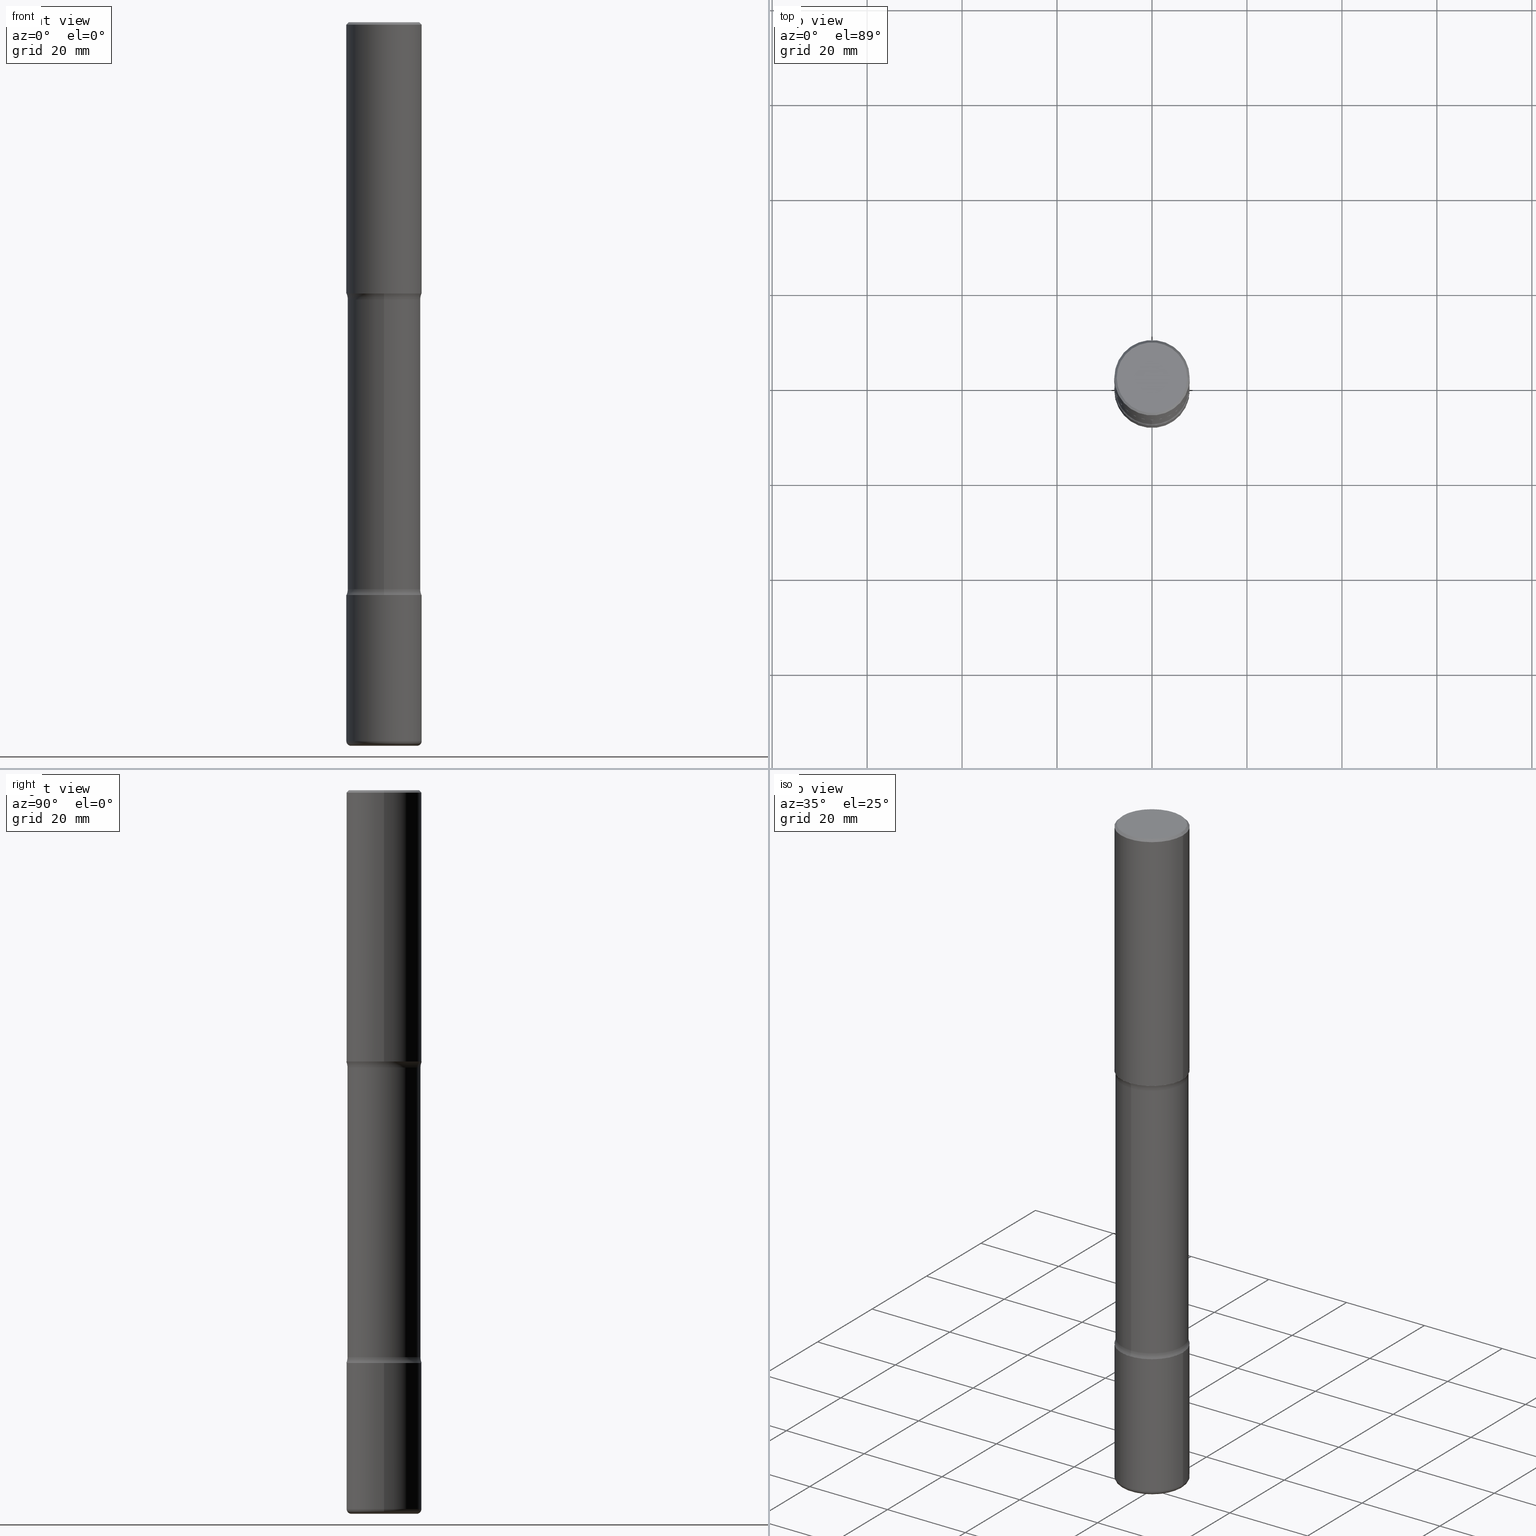
[diagram: canonical four-view strip — front | top / right | iso, engineering-drawing reading convention]
A machine part, canonical four-view strip (front | top / right | iso — engineering-drawing reading convention). The complete STEP part file that produces these views, byte-faithful:
ISO-10303-21;
HEADER;
FILE_DESCRIPTION (( 'STEP AP203' ),
    '1' );
FILE_NAME ('36469.STEP',
    '2024-03-01T23:57:30',
    ( '' ),
    ( '' ),
    'SwSTEP 2.0',
    'SolidWorks 2023',
    '' );
FILE_SCHEMA (( 'CONFIG_CONTROL_DESIGN' ));
ENDSEC;

DATA;
#1 = DIRECTION ( 'NONE',  ( -2.445468806185136597E-29, 3.491481338843145583E-15, 1.000000000000000000 ) ) ;
#2 = VERTEX_POINT ( 'NONE', #43 ) ;
#3 = VERTEX_POINT ( 'NONE', #541 ) ;
#4 = AXIS2_PLACEMENT_3D ( 'NONE', #390, #205, #490 ) ;
#5 = CARTESIAN_POINT ( 'NONE',  ( 0.3124999999999998890, -2.299140461628210919E-14, -5.960000000000000853 ) ) ;
#6 = ORIENTED_EDGE ( 'NONE', *, *, #443, .T. ) ;
#7 = ADVANCED_FACE ( 'NONE', ( #323 ), #114, .F. ) ;
#8 = FACE_OUTER_BOUND ( 'NONE', #248, .T. ) ;
#9 = LINE ( 'NONE', #69, #157 ) ;
#10 = ORIENTED_EDGE ( 'NONE', *, *, #329, .F. ) ;
#11 = APPROVAL_ROLE ( '' ) ;
#12 = CARTESIAN_POINT ( 'NONE',  ( 0.000000000000000000, 0.000000000000000000, 0.000000000000000000 ) ) ;
#13 = DIRECTION ( 'NONE',  ( 1.000000000000000000, -6.982962677686262766E-15, 0.000000000000000000 ) ) ;
#14 = DATE_AND_TIME ( #397, #517 ) ;
#15 = ORIENTED_EDGE ( 'NONE', *, *, #362, .T. ) ;
#16 = AXIS2_PLACEMENT_3D ( 'NONE', #325, #117, #290 ) ;
#17 = EDGE_CURVE ( 'NONE', #295, #409, #499, .T. ) ;
#18 = CIRCLE ( 'NONE', #516, 0.3125000000000002220 ) ;
#19 = DIRECTION ( 'NONE',  ( 6.982962677686265133E-15, 1.000000000000000000, -3.612360983357704414E-15 ) ) ;
#20 = AXIS2_PLACEMENT_3D ( 'NONE', #475, #281, #274 ) ;
#21 = CARTESIAN_POINT ( 'NONE',  ( 2.182175836777014751E-15, 0.3124999999999923395, -2.250000000000000888 ) ) ;
#22 = DESIGN_CONTEXT ( 'detailed design', #262, 'design' ) ;
#23 = CARTESIAN_POINT ( 'NONE',  ( 5.431343903248796638E-29, -8.300064766295809891E-15, -2.298989794855664126 ) ) ;
#24 = DIRECTION ( 'NONE',  ( 2.445468806185136597E-29, -3.491481338843145583E-15, -1.000000000000000000 ) ) ;
#25 = ORIENTED_EDGE ( 'NONE', *, *, #513, .F. ) ;
#26 = DIRECTION ( 'NONE',  ( -2.445468806185136597E-29, 3.491481338843145583E-15, 1.000000000000000000 ) ) ;
#27 = CARTESIAN_POINT ( 'NONE',  ( 0.3125000000000002776, -1.003800884917403837E-14, -2.249999999999999556 ) ) ;
#28 = ORIENTED_EDGE ( 'NONE', *, *, #94, .F. ) ;
#29 = CLOSED_SHELL ( 'NONE', ( #368, #172, #549, #128, #414, #228 ) ) ;
#30 = CIRCLE ( 'NONE', #399, 0.3124999999999998335 ) ;
#31 = CYLINDRICAL_SURFACE ( 'NONE', #245, 0.3024999999999999911 ) ;
#32 = ORIENTED_EDGE ( 'NONE', *, *, #422, .T. ) ;
#33 = EDGE_CURVE ( 'NONE', #554, #142, #511, .T. ) ;
#34 = FACE_OUTER_BOUND ( 'NONE', #311, .T. ) ;
#35 = DIRECTION ( 'NONE',  ( 2.438088387897960049E-29, -3.491481338843145188E-15, -1.000000000000000000 ) ) ;
#36 = PERSON_AND_ORGANIZATION ( #350, #67 ) ;
#37 = CC_DESIGN_PERSON_AND_ORGANIZATION_ASSIGNMENT ( #103, #273, ( #292 ) ) ;
#38 = DIRECTION ( 'NONE',  ( 6.982962677686265922E-15, 1.000000000000000000, -3.612360983357703625E-15 ) ) ;
#39 = AXIS2_PLACEMENT_3D ( 'NONE', #229, #260, #184 ) ;
#40 = DIRECTION ( 'NONE',  ( 0.7071067811865461294, -7.319954787623251312E-15, -0.7071067811865489050 ) ) ;
#41 = ORIENTED_EDGE ( 'NONE', *, *, #530, .T. ) ;
#42 = CARTESIAN_POINT ( 'NONE',  ( -2.143905624303553126E-15, -0.3125000000000086042, -2.249999999999998668 ) ) ;
#43 = CARTESIAN_POINT ( 'NONE',  ( -2.143905624303488045E-15, -0.3125000000000167644, -4.749999999999998224 ) ) ;
#44 = DIRECTION ( 'NONE',  ( 7.105427357601001859E-15, 1.000000000000000000, -3.491481338843145583E-15 ) ) ;
#45 = ORIENTED_EDGE ( 'NONE', *, *, #462, .F. ) ;
#46 = TOROIDAL_SURFACE ( 'NONE', #126, 0.2725000000000002420, 0.03999999999999923062 ) ;
#47 = AXIS2_PLACEMENT_3D ( 'NONE', #154, #351, #19 ) ;
#48 = DIRECTION ( 'NONE',  ( -2.445468806185136877E-29, 3.491481338843145188E-15, 1.000000000000000000 ) ) ;
#49 = VERTEX_POINT ( 'NONE', #282 ) ;
#50 = DIRECTION ( 'NONE',  ( 2.521774376508614919E-29, -3.382207419096575054E-15, -1.000000000000000000 ) ) ;
#51 = ORIENTED_EDGE ( 'NONE', *, *, #285, .T. ) ;
#52 = LINE ( 'NONE', #136, #491 ) ;
#53 = CC_DESIGN_PERSON_AND_ORGANIZATION_ASSIGNMENT ( #444, #533, ( #227 ) ) ;
#54 = EDGE_LOOP ( 'NONE', ( #429, #276 ) ) ;
#55 = AXIS2_PLACEMENT_3D ( 'NONE', #119, #291, #38 ) ;
#56 = CC_DESIGN_APPROVAL ( #133, ( #449 ) ) ;
#57 = DIRECTION ( 'NONE',  ( 1.000000000000000000, -6.982962677686269077E-15, 0.000000000000000000 ) ) ;
#58 = VERTEX_POINT ( 'NONE', #27 ) ;
#59 = APPROVAL_STATUS ( 'not_yet_approved' ) ;
#60 = CARTESIAN_POINT ( 'NONE',  ( -0.3124999999999998335, 2.112346210000093471E-15, -0.02000000000000013572 ) ) ;
#61 = APPLICATION_PROTOCOL_DEFINITION ( 'international standard', 'config_control_design', 1994, #74 ) ;
#62 = ORIENTED_EDGE ( 'NONE', *, *, #223, .T. ) ;
#63 = EDGE_CURVE ( 'NONE', #58, #393, #9, .T. ) ;
#64 = CARTESIAN_POINT ( 'NONE',  ( 1.467281283711081734E-28, -2.094888803305886955E-14, -5.999999999999999112 ) ) ;
#65 = DIRECTION ( 'NONE',  ( 2.445468806185136597E-29, -3.491481338843145583E-15, -1.000000000000000000 ) ) ;
#66 = CIRCLE ( 'NONE', #379, 0.1250000000000000278 ) ;
#67 = ORGANIZATION ( 'UNSPECIFIED', 'UNSPECIFIED', '' ) ;
#68 = FACE_OUTER_BOUND ( 'NONE', #170, .T. ) ;
#69 = CARTESIAN_POINT ( 'NONE',  ( 0.3125000000000000000, -2.182175836776958347E-15, 1.523805242436230075E-29 ) ) ;
#70 = SHAPE_DEFINITION_REPRESENTATION ( #478, #146 ) ;
#71 = DIRECTION ( 'NONE',  ( -6.982962677686266711E-15, -1.000000000000000000, 0.000000000000000000 ) ) ;
#72 = ADVANCED_FACE ( 'NONE', ( #346 ), #536, .T. ) ;
#73 = CALENDAR_DATE ( 2024, 1, 3 ) ;
#74 = APPLICATION_CONTEXT ( 'configuration controlled 3d designs of mechanical parts and assemblies' ) ;
#75 = VECTOR ( 'NONE', #40, 39.37007874015748143 ) ;
#76 = LINE ( 'NONE', #331, #174 ) ;
#77 = AXIS2_PLACEMENT_3D ( 'NONE', #134, #470, #92 ) ;
#78 = DIRECTION ( 'NONE',  ( 2.521774376508615199E-29, -3.382207419096575054E-15, -1.000000000000000000 ) ) ;
#79 = APPROVAL_STATUS ( 'not_yet_approved' ) ;
#80 = ADVANCED_FACE ( 'NONE', ( #454 ), #339, .T. ) ;
#81 = DIRECTION ( 'NONE',  ( 2.521774376508615199E-29, -3.382207419096575054E-15, -1.000000000000000000 ) ) ;
#82 = PLANE ( 'NONE',  #410 ) ;
#83 = CIRCLE ( 'NONE', #4, 0.3125000000000002220 ) ;
#84 = CIRCLE ( 'NONE', #20, 0.3125000000000002220 ) ;
#85 = CARTESIAN_POINT ( 'NONE',  ( 1.161597682937939659E-28, -1.658453635950493708E-14, -4.749999999999999112 ) ) ;
#86 = EDGE_LOOP ( 'NONE', ( #258, #185 ) ) ;
#87 = CARTESIAN_POINT ( 'NONE',  ( -0.2924999999999997602, 2.077431396611662611E-15, -1.440630921208799100E-29 ) ) ;
#88 = ADVANCED_FACE ( 'NONE', ( #241 ), #555, .T. ) ;
#89 = ORIENTED_EDGE ( 'NONE', *, *, #349, .T. ) ;
#90 = DIRECTION ( 'NONE',  ( 2.521774376508615199E-29, -3.382207419096575054E-15, -1.000000000000000000 ) ) ;
#91 = TOROIDAL_SURFACE ( 'NONE', #447, 0.4275000000000001021, 0.1250000000000000278 ) ;
#92 = DIRECTION ( 'NONE',  ( 6.860497997771531562E-15, 1.000000000000000000, 0.000000000000000000 ) ) ;
#93 = EDGE_LOOP ( 'NONE', ( #28, #243, #471, #266 ) ) ;
#94 = EDGE_CURVE ( 'NONE', #2, #474, #83, .T. ) ;
#95 = ORIENTED_EDGE ( 'NONE', *, *, #384, .T. ) ;
#96 = CARTESIAN_POINT ( 'NONE',  ( 5.502304813916556222E-29, -7.855833012397076871E-15, -2.249999999999999556 ) ) ;
#97 = VERTEX_POINT ( 'NONE', #21 ) ;
#98 = AXIS2_PLACEMENT_3D ( 'NONE', #446, #483, #159 ) ;
#99 =( GEOMETRIC_REPRESENTATION_CONTEXT ( 3 ) GLOBAL_UNCERTAINTY_ASSIGNED_CONTEXT ( ( #529 ) ) GLOBAL_UNIT_ASSIGNED_CONTEXT ( ( #453, #238, #531 ) ) REPRESENTATION_CONTEXT ( 'NONE', 'WORKASPACE' ) );
#100 = CARTESIAN_POINT ( 'NONE',  ( 5.502304813916556222E-29, -7.855833012397076871E-15, -2.249999999999999556 ) ) ;
#101 = DIRECTION ( 'NONE',  ( 1.000000000000000000, -6.982962677686270655E-15, 0.000000000000000000 ) ) ;
#102 = EDGE_CURVE ( 'NONE', #409, #382, #361, .T. ) ;
#103 = PERSON_AND_ORGANIZATION ( #350, #67 ) ;
#104 = ORIENTED_EDGE ( 'NONE', *, *, #495, .F. ) ;
#105 = DIRECTION ( 'NONE',  ( 1.000000000000000000, -6.982962677686262766E-15, 4.883557194083111780E-29 ) ) ;
#106 = ORIENTED_EDGE ( 'NONE', *, *, #179, .T. ) ;
#107 = COORDINATED_UNIVERSAL_TIME_OFFSET ( 5, 0, .BEHIND. ) ;
#108 = AXIS2_PLACEMENT_3D ( 'NONE', #249, #284, #543 ) ;
#109 = LINE ( 'NONE', #60, #165 ) ;
#110 = LOCAL_TIME ( 18, 57, 30.00000000000000000, #107 ) ;
#111 = EDGE_CURVE ( 'NONE', #218, #295, #261, .T. ) ;
#112 = CARTESIAN_POINT ( 'NONE',  ( 4.890937612370306439E-31, -6.982962677686338448E-17, -0.02000000000000013572 ) ) ;
#113 = DIRECTION ( 'NONE',  ( -2.445468806185136597E-29, 3.491481338843145583E-15, 1.000000000000000000 ) ) ;
#114 = PLANE ( 'NONE',  #197 ) ;
#115 = AXIS2_PLACEMENT_3D ( 'NONE', #296, #113, #496 ) ;
#116 = CARTESIAN_POINT ( 'NONE',  ( 1.149243562000197056E-28, -1.641884271188409594E-14, -4.701010205144335430 ) ) ;
#117 = DIRECTION ( 'NONE',  ( -6.982962677686266711E-15, -1.000000000000000000, 3.491481338843145583E-15 ) ) ;
#118 = ADVANCED_FACE ( 'NONE', ( #442 ), #461, .F. ) ;
#119 = CARTESIAN_POINT ( 'NONE',  ( 1.476819480001516468E-28, -2.081229563337565590E-14, -5.999999999999999112 ) ) ;
#120 = DIRECTION ( 'NONE',  ( -1.000000000000000000, 6.982962677686265922E-15, -4.876176775795935793E-29 ) ) ;
#121 = CARTESIAN_POINT ( 'NONE',  ( 1.741520017396376925E-28, -8.279718458765584785E-15, -4.749999999999999112 ) ) ;
#122 = DATE_AND_TIME ( #73, #411 ) ;
#123 = EDGE_LOOP ( 'NONE', ( #182, #341, #407, #389 ) ) ;
#124 = ORIENTED_EDGE ( 'NONE', *, *, #102, .T. ) ;
#125 = CARTESIAN_POINT ( 'NONE',  ( 5.431343903248796638E-29, -8.300064766295809891E-15, -2.298989794855664126 ) ) ;
#126 = AXIS2_PLACEMENT_3D ( 'NONE', #148, #485, #105 ) ;
#127 = VERTEX_POINT ( 'NONE', #355 ) ;
#128 = ADVANCED_FACE ( 'NONE', ( #452 ), #46, .T. ) ;
#129 = DIRECTION ( 'NONE',  ( -2.445468806185136597E-29, 3.491481338843145583E-15, 1.000000000000000000 ) ) ;
#130 = EDGE_LOOP ( 'NONE', ( #472, #153 ) ) ;
#131 = PRODUCT ( '36469', '36469', '', ( #487 ) ) ;
#132 = CARTESIAN_POINT ( 'NONE',  ( 0.3124999999999998335, -2.213735251080466123E-15, -0.02000000000000013572 ) ) ;
#133 = APPROVAL ( #79, 'UNSPECIFIED' ) ;
#134 = CARTESIAN_POINT ( 'NONE',  ( -2.932862894047215342E-15, -0.4275000000000165334, -4.701010205144333653 ) ) ;
#135 = APPROVAL ( #404, 'UNSPECIFIED' ) ;
#136 = CARTESIAN_POINT ( 'NONE',  ( 0.3125000000000002220, -2.182175836776959925E-15, 1.523805242436231196E-29 ) ) ;
#137 = EDGE_LOOP ( 'NONE', ( #204, #328, #476, #525 ) ) ;
#138 = DIRECTION ( 'NONE',  ( 2.521774376508615199E-29, -3.382207419096575054E-15, -1.000000000000000000 ) ) ;
#139 = CARTESIAN_POINT ( 'NONE',  ( 0.2924999999999997602, -2.110215457714318748E-15, 1.452077414963940822E-29 ) ) ;
#140 = ORIENTED_EDGE ( 'NONE', *, *, #443, .F. ) ;
#141 = CARTESIAN_POINT ( 'NONE',  ( 1.467281283711081734E-28, -2.094888803305886955E-14, -5.999999999999999112 ) ) ;
#142 = VERTEX_POINT ( 'NONE', #210 ) ;
#143 = ORIENTED_EDGE ( 'NONE', *, *, #267, .F. ) ;
#144 = AXIS2_PLACEMENT_3D ( 'NONE', #521, #1, #225 ) ;
#145 = LOCAL_TIME ( 18, 57, 30.00000000000000000, #166 ) ;
#146 = ADVANCED_BREP_SHAPE_REPRESENTATION ( '36469', ( #192, #367, #374, #547 ), #99 ) ;
#147 = DIRECTION ( 'NONE',  ( 2.521774376508615199E-29, -3.382207419096575054E-15, -1.000000000000000000 ) ) ;
#148 = CARTESIAN_POINT ( 'NONE',  ( 1.457499408486341564E-28, -2.080922877950515242E-14, -5.960000000000000853 ) ) ;
#149 = PERSON_AND_ORGANIZATION_ROLE ( 'design_supplier' ) ;
#150 = EDGE_LOOP ( 'NONE', ( #492, #32, #421, #25 ) ) ;
#151 = DIRECTION ( 'NONE',  ( -2.445468806185136597E-29, 3.491481338843145583E-15, 1.000000000000000000 ) ) ;
#152 = LENGTH_MEASURE_WITH_UNIT ( LENGTH_MEASURE( 0.02539999999999999897 ), #356 );
#153 = ORIENTED_EDGE ( 'NONE', *, *, #505, .F. ) ;
#154 = CARTESIAN_POINT ( 'NONE',  ( 1.149243562000197056E-28, -1.641884271188409594E-14, -4.701010205144335430 ) ) ;
#155 = APPROVAL_DATE_TIME ( #14, #156 ) ;
#156 = APPROVAL ( #59, 'UNSPECIFIED' ) ;
#157 = VECTOR ( 'NONE', #283, 39.37007874015748143 ) ;
#158 = CC_DESIGN_APPROVAL ( #156, ( #227 ) ) ;
#159 = DIRECTION ( 'NONE',  ( 1.000000000000000000, -6.982962677686266711E-15, 4.876176775795936353E-29 ) ) ;
#160 = CARTESIAN_POINT ( 'NONE',  ( -2.932862894047275690E-15, -0.4275000000000084288, -2.298989794855662794 ) ) ;
#161 = ORIENTED_EDGE ( 'NONE', *, *, #422, .F. ) ;
#162 = FACE_OUTER_BOUND ( 'NONE', #150, .T. ) ;
#163 = CIRCLE ( 'NONE', #183, 0.3125000000000002220 ) ;
#164 = CARTESIAN_POINT ( 'NONE',  ( 0.2725000000000001865, -2.285174536272837944E-14, -5.999999999999999112 ) ) ;
#165 = VECTOR ( 'NONE', #451, 39.37007874015748143 ) ;
#166 = COORDINATED_UNIVERSAL_TIME_OFFSET ( 5, 0, .BEHIND. ) ;
#167 = VERTEX_POINT ( 'NONE', #252 ) ;
#168 = DIRECTION ( 'NONE',  ( -1.000000000000000000, 6.982962677686265922E-15, -4.883557194083112340E-29 ) ) ;
#169 = ORIENTED_EDGE ( 'NONE', *, *, #193, .T. ) ;
#170 = EDGE_LOOP ( 'NONE', ( #189, #343, #464, #143 ) ) ;
#171 = DIRECTION ( 'NONE',  ( -1.000000000000000000, 6.982962677686265922E-15, -4.876176775795935793E-29 ) ) ;
#172 = ADVANCED_FACE ( 'NONE', ( #215 ), #537, .T. ) ;
#173 = CYLINDRICAL_SURFACE ( 'NONE', #144, 0.3125000000000002220 ) ;
#174 = VECTOR ( 'NONE', #408, 39.37007874015748143 ) ;
#175 = AXIS2_PLACEMENT_3D ( 'NONE', #12, #187, #402 ) ;
#176 = DIRECTION ( 'NONE',  ( 6.982962677686265922E-15, 1.000000000000000000, -3.612360983357702836E-15 ) ) ;
#177 = ORIENTED_EDGE ( 'NONE', *, *, #33, .T. ) ;
#178 = CARTESIAN_POINT ( 'NONE',  ( -0.2725000000000002420, -1.887299982455887651E-14, -5.960000000000000853 ) ) ;
#179 = EDGE_CURVE ( 'NONE', #382, #409, #312, .T. ) ;
#180 = ORIENTED_EDGE ( 'NONE', *, *, #406, .T. ) ;
#181 = FACE_OUTER_BOUND ( 'NONE', #522, .T. ) ;
#182 = ORIENTED_EDGE ( 'NONE', *, *, #430, .T. ) ;
#183 = AXIS2_PLACEMENT_3D ( 'NONE', #85, #300, #230 ) ;
#184 = DIRECTION ( 'NONE',  ( 1.000000000000000000, -6.982962677686262766E-15, 0.000000000000000000 ) ) ;
#185 = ORIENTED_EDGE ( 'NONE', *, *, #111, .F. ) ;
#186 = CARTESIAN_POINT ( 'NONE',  ( 0.000000000000000000, 0.000000000000000000, 0.000000000000000000 ) ) ;
#187 = DIRECTION ( 'NONE',  ( -2.445468806185136597E-29, 3.491481338843145583E-15, 1.000000000000000000 ) ) ;
#188 = DIRECTION ( 'NONE',  ( -1.000000000000000000, 6.982962677686265133E-15, 0.000000000000000000 ) ) ;
#189 = ORIENTED_EDGE ( 'NONE', *, *, #362, .F. ) ;
#190 = DIMENSIONAL_EXPONENTS ( 1.000000000000000000, 0.000000000000000000, 0.000000000000000000, 0.000000000000000000, 0.000000000000000000, 0.000000000000000000, 0.000000000000000000 ) ;
#191 = PERSON_AND_ORGANIZATION ( #350, #67 ) ;
#192 = MANIFOLD_SOLID_BREP ( 'Body-Move/Copy2[1]', #29 ) ;
#193 = EDGE_CURVE ( 'NONE', #316, #554, #426, .T. ) ;
#194 = PLANE ( 'NONE',  #352 ) ;
#195 = DIRECTION ( 'NONE',  ( 6.982962677686265133E-15, 1.000000000000000000, -3.382207419096575054E-15 ) ) ;
#196 = APPLICATION_PROTOCOL_DEFINITION ( 'international standard', 'config_control_design', 1994, #262 ) ;
#197 = AXIS2_PLACEMENT_3D ( 'NONE', #413, #216, #120 ) ;
#198 = CIRCLE ( 'NONE', #387, 0.3125000000000004996 ) ;
#199 = CIRCLE ( 'NONE', #538, 0.3125000000000002776 ) ;
#200 = CC_DESIGN_PERSON_AND_ORGANIZATION_ASSIGNMENT ( #528, #149, ( #227 ) ) ;
#201 = CARTESIAN_POINT ( 'NONE',  ( -2.109603134314694080E-15, -0.3025000000000083733, -2.298989794855662794 ) ) ;
#202 = DIRECTION ( 'NONE',  ( 2.521774376508615199E-29, -3.382207419096575054E-15, -1.000000000000000000 ) ) ;
#203 = DIRECTION ( 'NONE',  ( 0.000000000000000000, 0.000000000000000000, 1.000000000000000000 ) ) ;
#204 = ORIENTED_EDGE ( 'NONE', *, *, #378, .F. ) ;
#205 = DIRECTION ( 'NONE',  ( 2.521774376508615199E-29, -3.382207419096575054E-15, -1.000000000000000000 ) ) ;
#206 = CC_DESIGN_DATE_AND_TIME_ASSIGNMENT ( #477, #439, ( #292 ) ) ;
#207 = PERSON_AND_ORGANIZATION ( #350, #67 ) ;
#208 = EDGE_LOOP ( 'NONE', ( #161, #440, #95, #484 ) ) ;
#209 = FACE_OUTER_BOUND ( 'NONE', #86, .T. ) ;
#210 = CARTESIAN_POINT ( 'NONE',  ( -2.109603134314630577E-15, -0.3025000000000163669, -4.701010205144334542 ) ) ;
#211 = AXIS2_PLACEMENT_3D ( 'NONE', #560, #50, #431 ) ;
#212 = AXIS2_PLACEMENT_3D ( 'NONE', #306, #138, #463 ) ;
#213 = CARTESIAN_POINT ( 'NONE',  ( 1.457499408486341564E-28, -2.080922877950515242E-14, -5.960000000000000853 ) ) ;
#214 = EDGE_CURVE ( 'NONE', #97, #419, #198, .T. ) ;
#215 = FACE_OUTER_BOUND ( 'NONE', #123, .T. ) ;
#216 = DIRECTION ( 'NONE',  ( 2.438088387897960049E-29, -3.491481338843145188E-15, -1.000000000000000000 ) ) ;
#217 = DIRECTION ( 'NONE',  ( 6.982962677686265922E-15, 1.000000000000000000, -3.496765431890251398E-15 ) ) ;
#218 = VERTEX_POINT ( 'NONE', #460 ) ;
#219 = AXIS2_PLACEMENT_3D ( 'NONE', #551, #168, #71 ) ;
#220 = LINE ( 'NONE', #372, #501 ) ;
#221 = CC_DESIGN_APPROVAL ( #135, ( #292 ) ) ;
#222 = DIRECTION ( 'NONE',  ( 1.000000000000000000, -6.982962677686266711E-15, 0.000000000000000000 ) ) ;
#223 = EDGE_CURVE ( 'NONE', #474, #3, #363, .T. ) ;
#224 = DIRECTION ( 'NONE',  ( -1.000000000000000000, 7.105427357600966360E-15, 0.000000000000000000 ) ) ;
#225 = DIRECTION ( 'NONE',  ( 1.000000000000000000, -6.982962677686266711E-15, 4.876176775795936353E-29 ) ) ;
#226 = CIRCLE ( 'NONE', #526, 0.03999999999999923062 ) ;
#227 = PRODUCT_DEFINITION_FORMATION_WITH_SPECIFIED_SOURCE ( 'ANY', '', #131, .NOT_KNOWN. ) ;
#228 = ADVANCED_FACE ( 'NONE', ( #544 ), #82, .F. ) ;
#229 = CARTESIAN_POINT ( 'NONE',  ( 1.467281283711081734E-28, -2.094888803305886955E-14, -5.999999999999999112 ) ) ;
#230 = DIRECTION ( 'NONE',  ( 1.000000000000000000, -6.982962677686264344E-15, 0.000000000000000000 ) ) ;
#231 = ORIENTED_EDGE ( 'NONE', *, *, #63, .F. ) ;
#232 = DIRECTION ( 'NONE',  ( -2.445468806185136597E-29, 3.491481338843145583E-15, 1.000000000000000000 ) ) ;
#233 = ORIENTED_EDGE ( 'NONE', *, *, #259, .F. ) ;
#234 = AXIS2_PLACEMENT_3D ( 'NONE', #493, #532, #101 ) ;
#235 = ORIENTED_EDGE ( 'NONE', *, *, #530, .F. ) ;
#236 = AXIS2_PLACEMENT_3D ( 'NONE', #240, #26, #395 ) ;
#237 = ORIENTED_EDGE ( 'NONE', *, *, #254, .T. ) ;
#238 =( NAMED_UNIT ( * ) PLANE_ANGLE_UNIT ( ) SI_UNIT ( $, .RADIAN. ) );
#239 = EDGE_CURVE ( 'NONE', #49, #127, #18, .T. ) ;
#240 = CARTESIAN_POINT ( 'NONE',  ( 0.000000000000000000, 0.000000000000000000, 0.000000000000000000 ) ) ;
#241 = FACE_OUTER_BOUND ( 'NONE', #391, .T. ) ;
#242 = DIRECTION ( 'NONE',  ( 2.438088387897960049E-29, -3.491481338843145188E-15, -1.000000000000000000 ) ) ;
#243 = ORIENTED_EDGE ( 'NONE', *, *, #462, .T. ) ;
#244 = CLOSED_SHELL ( 'NONE', ( #72, #88, #80, #7, #523, #542 ) ) ;
#245 = AXIS2_PLACEMENT_3D ( 'NONE', #364, #78, #540 ) ;
#246 = AXIS2_PLACEMENT_3D ( 'NONE', #376, #334, #176 ) ;
#247 = EDGE_CURVE ( 'NONE', #3, #142, #303, .T. ) ;
#248 = EDGE_LOOP ( 'NONE', ( #305, #365, #237, #438 ) ) ;
#249 = CARTESIAN_POINT ( 'NONE',  ( 5.435082097485287570E-29, -8.294711459384350047E-15, -2.298989794855664126 ) ) ;
#250 = AXIS2_PLACEMENT_3D ( 'NONE', #433, #510, #265 ) ;
#251 = CARTESIAN_POINT ( 'NONE',  ( 2.112346210000150269E-15, 0.3024999999999917755, -2.298989794855665014 ) ) ;
#252 = CARTESIAN_POINT ( 'NONE',  ( -0.3125000000000002776, -1.742385270336651087E-15, -2.249999999999999556 ) ) ;
#253 = CARTESIAN_POINT ( 'NONE',  ( 1.161597682937939659E-28, -1.658453635950493708E-14, -4.749999999999999112 ) ) ;
#254 = EDGE_CURVE ( 'NONE', #316, #97, #436, .T. ) ;
#255 = DIRECTION ( 'NONE',  ( 1.000000000000000000, -6.982962677686262766E-15, 4.883557194083111780E-29 ) ) ;
#256 = FACE_OUTER_BOUND ( 'NONE', #535, .T. ) ;
#257 = LINE ( 'NONE', #381, #546 ) ;
#258 = ORIENTED_EDGE ( 'NONE', *, *, #430, .F. ) ;
#259 = EDGE_CURVE ( 'NONE', #559, #393, #506, .T. ) ;
#260 = DIRECTION ( 'NONE',  ( -2.445468806185136597E-29, 3.491481338843145583E-15, 1.000000000000000000 ) ) ;
#261 = CIRCLE ( 'NONE', #370, 0.2725000000000001865 ) ;
#262 = APPLICATION_CONTEXT ( 'configuration controlled 3d designs of mechanical parts and assemblies' ) ;
#263 = CARTESIAN_POINT ( 'NONE',  ( 2.182175836777075493E-15, 0.3124999999999836242, -4.750000000000000000 ) ) ;
#264 = EDGE_LOOP ( 'NONE', ( #550, #15, #424, #231 ) ) ;
#265 = DIRECTION ( 'NONE',  ( 1.000000000000000000, -6.982962677686266711E-15, 0.000000000000000000 ) ) ;
#266 = ORIENTED_EDGE ( 'NONE', *, *, #223, .F. ) ;
#267 = EDGE_CURVE ( 'NONE', #434, #393, #30, .T. ) ;
#268 = ORIENTED_EDGE ( 'NONE', *, *, #259, .T. ) ;
#269 = AXIS2_PLACEMENT_3D ( 'NONE', #116, #375, #293 ) ;
#270 = APPROVAL_DATE_TIME ( #392, #135 ) ;
#271 = CIRCLE ( 'NONE', #39, 0.2725000000000001865 ) ;
#272 = DIRECTION ( 'NONE',  ( -2.438088387897960049E-29, 3.491481338843145188E-15, 1.000000000000000000 ) ) ;
#273 = PERSON_AND_ORGANIZATION_ROLE ( 'creator' ) ;
#274 = DIRECTION ( 'NONE',  ( 6.982962677686265922E-15, 1.000000000000000000, -3.496765431890254553E-15 ) ) ;
#275 = DIRECTION ( 'NONE',  ( 1.000000000000000000, 0.000000000000000000, 0.000000000000000000 ) ) ;
#276 = ORIENTED_EDGE ( 'NONE', *, *, #384, .F. ) ;
#277 = ADVANCED_FACE ( 'NONE', ( #416 ), #91, .F. ) ;
#278 = PERSON_AND_ORGANIZATION ( #350, #67 ) ;
#279 = AXIS2_PLACEMENT_3D ( 'NONE', #289, #418, #366 ) ;
#280 = CIRCLE ( 'NONE', #175, 0.2924999999999997602 ) ;
#281 = DIRECTION ( 'NONE',  ( 2.521774376508615199E-29, -3.382207419096575054E-15, -1.000000000000000000 ) ) ;
#282 = CARTESIAN_POINT ( 'NONE',  ( -0.3125000000000002220, -1.647643652025473009E-14, -4.749999999999999112 ) ) ;
#283 = DIRECTION ( 'NONE',  ( -2.445468806185136877E-29, 3.491481338843145188E-15, 1.000000000000000000 ) ) ;
#284 = DIRECTION ( 'NONE',  ( 2.521774376508615199E-29, -3.382207419096575054E-15, -1.000000000000000000 ) ) ;
#285 = EDGE_CURVE ( 'NONE', #382, #49, #76, .T. ) ;
#286 = COORDINATED_UNIVERSAL_TIME_OFFSET ( 5, 0, .BEHIND. ) ;
#287 = CIRCLE ( 'NONE', #326, 0.3125000000000004996 ) ;
#288 = CIRCLE ( 'NONE', #509, 0.3125000000000002776 ) ;
#289 = CARTESIAN_POINT ( 'NONE',  ( 2.985216544710933608E-15, 0.4274999999999917755, -2.298989794855665902 ) ) ;
#290 = DIRECTION ( 'NONE',  ( 1.000000000000000000, -6.982962677686273021E-15, 0.000000000000000000 ) ) ;
#291 = DIRECTION ( 'NONE',  ( 2.521774376508615199E-29, -3.382207419096575054E-15, -1.000000000000000000 ) ) ;
#292 = PRODUCT_DEFINITION ( 'UNKNOWN', '', #227, #22 ) ;
#293 = DIRECTION ( 'NONE',  ( 6.982962677686265133E-15, 1.000000000000000000, -3.612360983357704414E-15 ) ) ;
#294 = CALENDAR_DATE ( 2024, 1, 3 ) ;
#295 = VERTEX_POINT ( 'NONE', #164 ) ;
#296 = CARTESIAN_POINT ( 'NONE',  ( 1.457499408486341564E-28, -2.080922877950515242E-14, -5.960000000000000853 ) ) ;
#297 = AXIS2_PLACEMENT_3D ( 'NONE', #512, #302, #466 ) ;
#298 = CARTESIAN_POINT ( 'NONE',  ( 0.000000000000000000, 0.000000000000000000, 0.000000000000000000 ) ) ;
#299 = ADVANCED_FACE ( 'NONE', ( #34 ), #31, .T. ) ;
#300 = DIRECTION ( 'NONE',  ( -2.445468806185136597E-29, 3.491481338843145583E-15, 1.000000000000000000 ) ) ;
#301 = CC_DESIGN_PERSON_AND_ORGANIZATION_ASSIGNMENT ( #36, #504, ( #449 ) ) ;
#302 = DIRECTION ( 'NONE',  ( -2.521774376508614919E-29, 3.382207419096575054E-15, 1.000000000000000000 ) ) ;
#303 = CIRCLE ( 'NONE', #269, 0.3024999999999999356 ) ;
#304 = CIRCLE ( 'NONE', #527, 0.2924999999999997602 ) ;
#305 = ORIENTED_EDGE ( 'NONE', *, *, #314, .F. ) ;
#306 = CARTESIAN_POINT ( 'NONE',  ( 1.149617381423846373E-28, -1.641348940497263768E-14, -4.701010205144335430 ) ) ;
#307 = EDGE_LOOP ( 'NONE', ( #445, #552 ) ) ;
#308 = CC_DESIGN_PERSON_AND_ORGANIZATION_ASSIGNMENT ( #278, #400, ( #131 ) ) ;
#309 = ORIENTED_EDGE ( 'NONE', *, *, #285, .F. ) ;
#310 = CALENDAR_DATE ( 2024, 1, 3 ) ;
#311 = EDGE_LOOP ( 'NONE', ( #169, #177, #347, #10 ) ) ;
#312 = CIRCLE ( 'NONE', #115, 0.3125000000000002220 ) ;
#313 = CARTESIAN_POINT ( 'NONE',  ( -2.075300644325739976E-15, -0.3025000000000207523, -5.999999999999998224 ) ) ;
#314 = EDGE_CURVE ( 'NONE', #554, #419, #66, .T. ) ;
#315 = SECURITY_CLASSIFICATION_LEVEL ( 'unclassified' ) ;
#316 = VERTEX_POINT ( 'NONE', #251 ) ;
#317 = ORIENTED_EDGE ( 'NONE', *, *, #94, .T. ) ;
#318 = PLANE ( 'NONE',  #556 ) ;
#319 = CIRCLE ( 'NONE', #246, 0.3025000000000000466 ) ;
#320 = DIRECTION ( 'NONE',  ( -1.000000000000000000, 6.982962677686265133E-15, 0.000000000000000000 ) ) ;
#321 = ADVANCED_FACE ( 'NONE', ( #162 ), #498, .T. ) ;
#322 = DIRECTION ( 'NONE',  ( 6.860497997771532351E-15, 1.000000000000000000, 0.000000000000000000 ) ) ;
#323 = FACE_OUTER_BOUND ( 'NONE', #353, .T. ) ;
#324 = DIRECTION ( 'NONE',  ( 6.982962677686266711E-15, 1.000000000000000000, -3.382207419096575054E-15 ) ) ;
#325 = CARTESIAN_POINT ( 'NONE',  ( 0.2725000000000002420, -2.271208610917465915E-14, -5.960000000000000853 ) ) ;
#326 = AXIS2_PLACEMENT_3D ( 'NONE', #337, #420, #473 ) ;
#327 = CARTESIAN_POINT ( 'NONE',  ( 0.3124999999999998335, -2.213735251080466123E-15, -0.02000000000000013572 ) ) ;
#328 = ORIENTED_EDGE ( 'NONE', *, *, #111, .T. ) ;
#329 = EDGE_CURVE ( 'NONE', #316, #3, #220, .T. ) ;
#330 = CARTESIAN_POINT ( 'NONE',  ( 4.890937612370306439E-31, -6.982962677686338448E-17, -0.02000000000000013572 ) ) ;
#331 = CARTESIAN_POINT ( 'NONE',  ( -0.3125000000000002220, 2.220446049250314659E-15, -1.537167215704659073E-29 ) ) ;
#332 = AXIS2_PLACEMENT_3D ( 'NONE', #403, #65, #320 ) ;
#333 = TOROIDAL_SURFACE ( 'NONE', #469, 0.4275000000000001021, 0.1250000000000000278 ) ;
#334 = DIRECTION ( 'NONE',  ( 2.521774376508615199E-29, -3.382207419096575054E-15, -1.000000000000000000 ) ) ;
#335 = ADVANCED_FACE ( 'NONE', ( #383 ), #423, .F. ) ;
#336 = PLANE ( 'NONE',  #297 ) ;
#337 = CARTESIAN_POINT ( 'NONE',  ( 5.311540888107860416E-29, -8.129017811763502601E-15, -2.249999999999999556 ) ) ;
#338 = FACE_OUTER_BOUND ( 'NONE', #93, .T. ) ;
#339 = CONICAL_SURFACE ( 'NONE', #332, 0.3124999999999998335, 0.7853981633974463916 ) ;
#340 = APPROVAL_PERSON_ORGANIZATION ( #191, #156, #348 ) ;
#341 = ORIENTED_EDGE ( 'NONE', *, *, #378, .T. ) ;
#342 = CARTESIAN_POINT ( 'NONE',  ( -0.3124999999999998335, 2.112346210000093471E-15, -0.02000000000000013572 ) ) ;
#343 = ORIENTED_EDGE ( 'NONE', *, *, #505, .T. ) ;
#344 = CALENDAR_DATE ( 2024, 1, 3 ) ;
#345 = DIRECTION ( 'NONE',  ( -2.445468806185136597E-29, 3.491481338843145583E-15, 1.000000000000000000 ) ) ;
#346 = FACE_OUTER_BOUND ( 'NONE', #264, .T. ) ;
#347 = ORIENTED_EDGE ( 'NONE', *, *, #247, .F. ) ;
#348 = APPROVAL_ROLE ( '' ) ;
#349 = EDGE_CURVE ( 'NONE', #393, #434, #479, .T. ) ;
#350 = PERSON ( 'UNSPECIFIED', 'UNSPECIFIED', 'UNSPECIFIED', ('UNSPECIFIED'), ('UNSPECIFIED'), ('UNSPECIFIED') ) ;
#351 = DIRECTION ( 'NONE',  ( 2.521774376508615199E-29, -3.382207419096575054E-15, -1.000000000000000000 ) ) ;
#352 = AXIS2_PLACEMENT_3D ( 'NONE', #64, #242, #398 ) ;
#353 = EDGE_LOOP ( 'NONE', ( #6, #539 ) ) ;
#354 = CARTESIAN_POINT ( 'NONE',  ( 5.502304813916556222E-29, -7.855833012397076871E-15, -2.249999999999999556 ) ) ;
#355 = CARTESIAN_POINT ( 'NONE',  ( 0.3125000000000002220, -1.876671219628189700E-14, -4.749999999999999112 ) ) ;
#356 =( LENGTH_UNIT ( ) NAMED_UNIT ( * ) SI_UNIT ( $, .METRE. ) );
#357 = DIRECTION ( 'NONE',  ( 2.521774376508615199E-29, -3.382207419096575054E-15, -1.000000000000000000 ) ) ;
#358 = COORDINATED_UNIVERSAL_TIME_OFFSET ( 5, 0, .BEHIND. ) ;
#359 = DIRECTION ( 'NONE',  ( -2.445468806185136597E-29, 3.491481338843145583E-15, 1.000000000000000000 ) ) ;
#360 = EDGE_LOOP ( 'NONE', ( #45, #519, #62, #385 ) ) ;
#361 = CIRCLE ( 'NONE', #234, 0.3125000000000002220 ) ;
#362 = EDGE_CURVE ( 'NONE', #167, #434, #257, .T. ) ;
#363 = CIRCLE ( 'NONE', #219, 0.1250000000000001110 ) ;
#364 = CARTESIAN_POINT ( 'NONE',  ( 1.476819480001516468E-28, -2.081229563337565590E-14, -5.999999999999999112 ) ) ;
#365 = ORIENTED_EDGE ( 'NONE', *, *, #193, .F. ) ;
#366 = DIRECTION ( 'NONE',  ( -6.982962677686265133E-15, -1.000000000000000000, 0.000000000000000000 ) ) ;
#367 = MANIFOLD_SOLID_BREP ( 'Body-Move/Copy2[2]', #244 ) ;
#368 = ADVANCED_FACE ( 'NONE', ( #428 ), #173, .T. ) ;
#369 = DATE_TIME_ROLE ( 'classification_date' ) ;
#370 = AXIS2_PLACEMENT_3D ( 'NONE', #141, #359, #13 ) ;
#371 = TOROIDAL_SURFACE ( 'NONE', #212, 0.4275000000000001577, 0.1250000000000001110 ) ;
#372 = CARTESIAN_POINT ( 'NONE',  ( 2.112346210000242960E-15, 0.3024999999999791744, -6.000000000000000888 ) ) ;
#373 = DATE_AND_TIME ( #294, #145 ) ;
#374 = MANIFOLD_SOLID_BREP ( 'Body-Move/Copy2[4]', #425 ) ;
#375 = DIRECTION ( 'NONE',  ( 2.521774376508615199E-29, -3.382207419096575054E-15, -1.000000000000000000 ) ) ;
#376 = CARTESIAN_POINT ( 'NONE',  ( 5.435082097485287570E-29, -8.294711459384350047E-15, -2.298989794855664126 ) ) ;
#377 = VERTEX_POINT ( 'NONE', #87 ) ;
#378 = EDGE_CURVE ( 'NONE', #218, #382, #226, .T. ) ;
#379 = AXIS2_PLACEMENT_3D ( 'NONE', #160, #502, #322 ) ;
#380 = LOCAL_TIME ( 18, 57, 30.00000000000000000, #448 ) ;
#381 = CARTESIAN_POINT ( 'NONE',  ( -0.3125000000000000000, 2.220446049250313081E-15, -1.537167215704658232E-29 ) ) ;
#382 = VERTEX_POINT ( 'NONE', #465 ) ;
#383 = FACE_OUTER_BOUND ( 'NONE', #54, .T. ) ;
#384 = EDGE_CURVE ( 'NONE', #419, #97, #287, .T. ) ;
#385 = ORIENTED_EDGE ( 'NONE', *, *, #247, .T. ) ;
#386 = DIRECTION ( 'NONE',  ( -2.445468806185136877E-29, 3.491481338843145188E-15, 1.000000000000000000 ) ) ;
#387 = AXIS2_PLACEMENT_3D ( 'NONE', #412, #81, #217 ) ;
#388 = CIRCLE ( 'NONE', #77, 0.1250000000000001110 ) ;
#389 = ORIENTED_EDGE ( 'NONE', *, *, #17, .F. ) ;
#390 = CARTESIAN_POINT ( 'NONE',  ( 1.161597682937939659E-28, -1.658453635950493708E-14, -4.749999999999999112 ) ) ;
#391 = EDGE_LOOP ( 'NONE', ( #104, #268, #89, #235 ) ) ;
#392 = DATE_AND_TIME ( #344, #380 ) ;
#393 = VERTEX_POINT ( 'NONE', #132 ) ;
#394 = EDGE_CURVE ( 'NONE', #127, #49, #163, .T. ) ;
#395 = DIRECTION ( 'NONE',  ( 1.000000000000000000, -6.982962677686266711E-15, 4.876176775795936353E-29 ) ) ;
#396 = CARTESIAN_POINT ( 'NONE',  ( 1.149617381423846373E-28, -1.641348940497263768E-14, -4.701010205144335430 ) ) ;
#397 = CALENDAR_DATE ( 2024, 1, 3 ) ;
#398 = DIRECTION ( 'NONE',  ( -1.000000000000000000, 6.982962677686265922E-15, -4.876176775795935793E-29 ) ) ;
#399 = AXIS2_PLACEMENT_3D ( 'NONE', #330, #459, #222 ) ;
#400 = PERSON_AND_ORGANIZATION_ROLE ( 'design_owner' ) ;
#401 = EDGE_LOOP ( 'NONE', ( #124, #51, #432, #520 ) ) ;
#402 = DIRECTION ( 'NONE',  ( 1.000000000000000000, -6.982962677686266711E-15, 4.876176775795936353E-29 ) ) ;
#403 = CARTESIAN_POINT ( 'NONE',  ( 4.890937612370306439E-31, -6.982962677686338448E-17, -0.02000000000000013572 ) ) ;
#404 = APPROVAL_STATUS ( 'not_yet_approved' ) ;
#405 = CYLINDRICAL_SURFACE ( 'NONE', #236, 0.3125000000000000000 ) ;
#406 = EDGE_CURVE ( 'NONE', #409, #127, #52, .T. ) ;
#407 = ORIENTED_EDGE ( 'NONE', *, *, #102, .F. ) ;
#408 = DIRECTION ( 'NONE',  ( -2.445468806185136877E-29, 3.491481338843145188E-15, 1.000000000000000000 ) ) ;
#409 = VERTEX_POINT ( 'NONE', #5 ) ;
#410 = AXIS2_PLACEMENT_3D ( 'NONE', #121, #35, #171 ) ;
#411 = LOCAL_TIME ( 18, 57, 30.00000000000000000, #286 ) ;
#412 = CARTESIAN_POINT ( 'NONE',  ( 5.311540888107860416E-29, -8.129017811763502601E-15, -2.249999999999999556 ) ) ;
#413 = CARTESIAN_POINT ( 'NONE',  ( 2.042516583223230962E-15, 0.2924999999999997602, -1.021258291611619228E-15 ) ) ;
#414 = ADVANCED_FACE ( 'NONE', ( #181 ), #558, .T. ) ;
#415 = DIRECTION ( 'NONE',  ( -2.445468806185136597E-29, 3.491481338843145583E-15, 1.000000000000000000 ) ) ;
#416 = FACE_OUTER_BOUND ( 'NONE', #208, .T. ) ;
#417 = APPROVAL_PERSON_ORGANIZATION ( #545, #133, #494 ) ;
#418 = DIRECTION ( 'NONE',  ( -1.000000000000000000, 6.982962677686265922E-15, -4.883557194083112340E-29 ) ) ;
#419 = VERTEX_POINT ( 'NONE', #42 ) ;
#420 = DIRECTION ( 'NONE',  ( 2.521774376508615199E-29, -3.382207419096575054E-15, -1.000000000000000000 ) ) ;
#421 = ORIENTED_EDGE ( 'NONE', *, *, #329, .T. ) ;
#422 = EDGE_CURVE ( 'NONE', #554, #316, #319, .T. ) ;
#423 = PLANE ( 'NONE',  #211 ) ;
#424 = ORIENTED_EDGE ( 'NONE', *, *, #349, .F. ) ;
#425 = CLOSED_SHELL ( 'NONE', ( #299, #450, #277, #488, #335, #456, #118, #321 ) ) ;
#426 = CIRCLE ( 'NONE', #108, 0.3025000000000000466 ) ;
#427 = APPROVAL_PERSON_ORGANIZATION ( #207, #135, #11 ) ;
#428 = FACE_OUTER_BOUND ( 'NONE', #401, .T. ) ;
#429 = ORIENTED_EDGE ( 'NONE', *, *, #214, .F. ) ;
#430 = EDGE_CURVE ( 'NONE', #295, #218, #271, .T. ) ;
#431 = DIRECTION ( 'NONE',  ( 6.982962677686265922E-15, 1.000000000000000000, -3.382207419096575054E-15 ) ) ;
#432 = ORIENTED_EDGE ( 'NONE', *, *, #394, .F. ) ;
#433 = CARTESIAN_POINT ( 'NONE',  ( 4.890937612370306439E-31, -6.982962677686338448E-17, -0.02000000000000013572 ) ) ;
#434 = VERTEX_POINT ( 'NONE', #342 ) ;
#435 = ORIENTED_EDGE ( 'NONE', *, *, #481, .T. ) ;
#436 = CIRCLE ( 'NONE', #279, 0.1250000000000000278 ) ;
#437 = AXIS2_PLACEMENT_3D ( 'NONE', #298, #232, #518 ) ;
#438 = ORIENTED_EDGE ( 'NONE', *, *, #214, .T. ) ;
#439 = DATE_TIME_ROLE ( 'creation_date' ) ;
#440 = ORIENTED_EDGE ( 'NONE', *, *, #314, .T. ) ;
#441 = DIRECTION ( 'NONE',  ( 1.000000000000000000, -6.982962677686265922E-15, 4.876176775795935793E-29 ) ) ;
#442 = FACE_OUTER_BOUND ( 'NONE', #360, .T. ) ;
#443 = EDGE_CURVE ( 'NONE', #377, #559, #304, .T. ) ;
#444 = PERSON_AND_ORGANIZATION ( #350, #67 ) ;
#445 = ORIENTED_EDGE ( 'NONE', *, *, #394, .T. ) ;
#446 = CARTESIAN_POINT ( 'NONE',  ( 0.000000000000000000, 0.000000000000000000, 0.000000000000000000 ) ) ;
#447 = AXIS2_PLACEMENT_3D ( 'NONE', #125, #503, #324 ) ;
#448 = COORDINATED_UNIVERSAL_TIME_OFFSET ( 5, 0, .BEHIND. ) ;
#449 = SECURITY_CLASSIFICATION ( '', '', #315 ) ;
#450 = ADVANCED_FACE ( 'NONE', ( #338 ), #371, .F. ) ;
#451 = DIRECTION ( 'NONE',  ( -0.7071067811865461294, 2.468850131082242072E-15, -0.7071067811865489050 ) ) ;
#452 = FACE_OUTER_BOUND ( 'NONE', #137, .T. ) ;
#453 =( CONVERSION_BASED_UNIT ( 'INCH', #152 ) LENGTH_UNIT ( ) NAMED_UNIT ( #190 ) );
#454 = FACE_OUTER_BOUND ( 'NONE', #507, .T. ) ;
#455 = DIRECTION ( 'NONE',  ( -2.445468806185136597E-29, 3.491481338843145583E-15, 1.000000000000000000 ) ) ;
#456 = ADVANCED_FACE ( 'NONE', ( #256 ), #336, .F. ) ;
#457 = AXIS2_PLACEMENT_3D ( 'NONE', #112, #24, #188 ) ;
#458 = CC_DESIGN_SECURITY_CLASSIFICATION ( #449, ( #227 ) ) ;
#459 = DIRECTION ( 'NONE',  ( -2.445468806185136597E-29, 3.491481338843145583E-15, 1.000000000000000000 ) ) ;
#460 = CARTESIAN_POINT ( 'NONE',  ( -0.2725000000000001865, -1.880072090418371965E-14, -5.999999999999999112 ) ) ;
#461 = TOROIDAL_SURFACE ( 'NONE', #468, 0.4275000000000001577, 0.1250000000000001110 ) ;
#462 = EDGE_CURVE ( 'NONE', #2, #142, #388, .T. ) ;
#463 = DIRECTION ( 'NONE',  ( 6.982962677686265133E-15, 1.000000000000000000, -3.382207419096575054E-15 ) ) ;
#464 = ORIENTED_EDGE ( 'NONE', *, *, #63, .T. ) ;
#465 = CARTESIAN_POINT ( 'NONE',  ( -0.3124999999999998890, -1.858878273025483934E-14, -5.960000000000000853 ) ) ;
#466 = DIRECTION ( 'NONE',  ( -6.982962677686265922E-15, -1.000000000000000000, 3.382207419096575054E-15 ) ) ;
#467 = VECTOR ( 'NONE', #357, 39.37007874015748143 ) ;
#468 = AXIS2_PLACEMENT_3D ( 'NONE', #396, #202, #195 ) ;
#469 = AXIS2_PLACEMENT_3D ( 'NONE', #23, #147, #489 ) ;
#470 = DIRECTION ( 'NONE',  ( 1.000000000000000000, -6.860497997771530774E-15, 4.842137099184622167E-29 ) ) ;
#471 = ORIENTED_EDGE ( 'NONE', *, *, #513, .T. ) ;
#472 = ORIENTED_EDGE ( 'NONE', *, *, #557, .F. ) ;
#473 = DIRECTION ( 'NONE',  ( 6.982962677686265922E-15, 1.000000000000000000, -3.496765431890251398E-15 ) ) ;
#474 = VERTEX_POINT ( 'NONE', #263 ) ;
#475 = CARTESIAN_POINT ( 'NONE',  ( 1.161597682937939659E-28, -1.658453635950493708E-14, -4.749999999999999112 ) ) ;
#476 = ORIENTED_EDGE ( 'NONE', *, *, #17, .T. ) ;
#477 = DATE_AND_TIME ( #310, #110 ) ;
#478 = PRODUCT_DEFINITION_SHAPE ( 'NONE', 'NONE',  #292 ) ;
#479 = CIRCLE ( 'NONE', #250, 0.3124999999999998335 ) ;
#480 = FACE_OUTER_BOUND ( 'NONE', #130, .T. ) ;
#481 = EDGE_CURVE ( 'NONE', #474, #2, #84, .T. ) ;
#482 = CIRCLE ( 'NONE', #47, 0.3024999999999999356 ) ;
#483 = DIRECTION ( 'NONE',  ( -2.445468806185136597E-29, 3.491481338843145583E-15, 1.000000000000000000 ) ) ;
#484 = ORIENTED_EDGE ( 'NONE', *, *, #254, .F. ) ;
#485 = DIRECTION ( 'NONE',  ( -2.445468806185136597E-29, 3.491481338843145583E-15, 1.000000000000000000 ) ) ;
#486 = ORIENTED_EDGE ( 'NONE', *, *, #239, .F. ) ;
#487 = MECHANICAL_CONTEXT ( 'NONE', #74, 'mechanical' ) ;
#488 = ADVANCED_FACE ( 'NONE', ( #8 ), #333, .F. ) ;
#489 = DIRECTION ( 'NONE',  ( 6.982962677686266711E-15, 1.000000000000000000, -3.382207419096575054E-15 ) ) ;
#490 = DIRECTION ( 'NONE',  ( 6.982962677686265922E-15, 1.000000000000000000, -3.496765431890254553E-15 ) ) ;
#491 = VECTOR ( 'NONE', #386, 39.37007874015748143 ) ;
#492 = ORIENTED_EDGE ( 'NONE', *, *, #33, .F. ) ;
#493 = CARTESIAN_POINT ( 'NONE',  ( 1.457499408486341564E-28, -2.080922877950515242E-14, -5.960000000000000853 ) ) ;
#494 = APPROVAL_ROLE ( '' ) ;
#495 = EDGE_CURVE ( 'NONE', #559, #377, #280, .T. ) ;
#496 = DIRECTION ( 'NONE',  ( 1.000000000000000000, -6.982962677686270655E-15, 0.000000000000000000 ) ) ;
#497 = ORIENTED_EDGE ( 'NONE', *, *, #267, .T. ) ;
#498 = CYLINDRICAL_SURFACE ( 'NONE', #55, 0.3024999999999999911 ) ;
#499 = CIRCLE ( 'NONE', #16, 0.03999999999999923062 ) ;
#500 = APPROVAL_DATE_TIME ( #373, #133 ) ;
#501 = VECTOR ( 'NONE', #90, 39.37007874015748143 ) ;
#502 = DIRECTION ( 'NONE',  ( 1.000000000000000000, -6.860497997771530774E-15, 4.842137099184622167E-29 ) ) ;
#503 = DIRECTION ( 'NONE',  ( 2.521774376508615199E-29, -3.382207419096575054E-15, -1.000000000000000000 ) ) ;
#504 = PERSON_AND_ORGANIZATION_ROLE ( 'classification_officer' ) ;
#505 = EDGE_CURVE ( 'NONE', #167, #58, #288, .T. ) ;
#506 = LINE ( 'NONE', #327, #75 ) ;
#507 = EDGE_LOOP ( 'NONE', ( #233, #140, #41, #497 ) ) ;
#508 = AXIS2_PLACEMENT_3D ( 'NONE', #213, #415, #255 ) ;
#509 = AXIS2_PLACEMENT_3D ( 'NONE', #96, #345, #524 ) ;
#510 = DIRECTION ( 'NONE',  ( -2.445468806185136597E-29, 3.491481338843145583E-15, 1.000000000000000000 ) ) ;
#511 = LINE ( 'NONE', #313, #467 ) ;
#512 = CARTESIAN_POINT ( 'NONE',  ( 1.741520017396376925E-28, -8.279718458765584785E-15, -4.749999999999999112 ) ) ;
#513 = EDGE_CURVE ( 'NONE', #142, #3, #482, .T. ) ;
#514 = DIRECTION ( 'NONE',  ( 1.000000000000000000, -6.982962677686266711E-15, 4.876176775795936353E-29 ) ) ;
#515 = PRODUCT_RELATED_PRODUCT_CATEGORY ( 'detail', '', ( #131 ) ) ;
#516 = AXIS2_PLACEMENT_3D ( 'NONE', #253, #455, #548 ) ;
#517 = LOCAL_TIME ( 18, 57, 30.00000000000000000, #358 ) ;
#518 = DIRECTION ( 'NONE',  ( 1.000000000000000000, -6.982962677686266711E-15, 4.876176775795936353E-29 ) ) ;
#519 = ORIENTED_EDGE ( 'NONE', *, *, #481, .F. ) ;
#520 = ORIENTED_EDGE ( 'NONE', *, *, #406, .F. ) ;
#521 = CARTESIAN_POINT ( 'NONE',  ( 0.000000000000000000, 0.000000000000000000, 0.000000000000000000 ) ) ;
#522 = EDGE_LOOP ( 'NONE', ( #309, #106, #180, #486 ) ) ;
#523 = ADVANCED_FACE ( 'NONE', ( #480 ), #318, .F. ) ;
#524 = DIRECTION ( 'NONE',  ( 1.000000000000000000, -6.982962677686269077E-15, 0.000000000000000000 ) ) ;
#525 = ORIENTED_EDGE ( 'NONE', *, *, #179, .F. ) ;
#526 = AXIS2_PLACEMENT_3D ( 'NONE', #178, #44, #224 ) ;
#527 = AXIS2_PLACEMENT_3D ( 'NONE', #553, #129, #514 ) ;
#528 = PERSON_AND_ORGANIZATION ( #350, #67 ) ;
#529 = UNCERTAINTY_MEASURE_WITH_UNIT (LENGTH_MEASURE( 1.000000000000000082E-05 ), #453, 'distance_accuracy_value', 'NONE');
#530 = EDGE_CURVE ( 'NONE', #377, #434, #109, .T. ) ;
#531 =( NAMED_UNIT ( * ) SI_UNIT ( $, .STERADIAN. ) SOLID_ANGLE_UNIT ( ) );
#532 = DIRECTION ( 'NONE',  ( -2.445468806185136597E-29, 3.491481338843145583E-15, 1.000000000000000000 ) ) ;
#533 = PERSON_AND_ORGANIZATION_ROLE ( 'creator' ) ;
#534 = CC_DESIGN_DATE_AND_TIME_ASSIGNMENT ( #122, #369, ( #449 ) ) ;
#535 = EDGE_LOOP ( 'NONE', ( #435, #317 ) ) ;
#536 = CYLINDRICAL_SURFACE ( 'NONE', #98, 0.3125000000000000000 ) ;
#537 = TOROIDAL_SURFACE ( 'NONE', #508, 0.2725000000000002420, 0.03999999999999923062 ) ;
#538 = AXIS2_PLACEMENT_3D ( 'NONE', #354, #151, #57 ) ;
#539 = ORIENTED_EDGE ( 'NONE', *, *, #495, .T. ) ;
#540 = DIRECTION ( 'NONE',  ( 6.982962677686265922E-15, 1.000000000000000000, -3.612360983357703625E-15 ) ) ;
#541 = CARTESIAN_POINT ( 'NONE',  ( 2.112346210000209828E-15, 0.3024999999999835043, -4.701010205144336318 ) ) ;
#542 = ADVANCED_FACE ( 'NONE', ( #68 ), #405, .T. ) ;
#543 = DIRECTION ( 'NONE',  ( 6.982962677686265922E-15, 1.000000000000000000, -3.612360983357702836E-15 ) ) ;
#544 = FACE_OUTER_BOUND ( 'NONE', #307, .T. ) ;
#545 = PERSON_AND_ORGANIZATION ( #350, #67 ) ;
#546 = VECTOR ( 'NONE', #48, 39.37007874015748143 ) ;
#547 = AXIS2_PLACEMENT_3D ( 'NONE', #186, #203, #275 ) ;
#548 = DIRECTION ( 'NONE',  ( 1.000000000000000000, -6.982962677686264344E-15, 0.000000000000000000 ) ) ;
#549 = ADVANCED_FACE ( 'NONE', ( #209 ), #194, .T. ) ;
#550 = ORIENTED_EDGE ( 'NONE', *, *, #557, .T. ) ;
#551 = CARTESIAN_POINT ( 'NONE',  ( 2.985216544710994745E-15, 0.4274999999999837819, -4.701010205144337206 ) ) ;
#552 = ORIENTED_EDGE ( 'NONE', *, *, #239, .T. ) ;
#553 = CARTESIAN_POINT ( 'NONE',  ( 0.000000000000000000, 0.000000000000000000, 0.000000000000000000 ) ) ;
#554 = VERTEX_POINT ( 'NONE', #201 ) ;
#555 = CONICAL_SURFACE ( 'NONE', #457, 0.3124999999999998335, 0.7853981633974463916 ) ;
#556 = AXIS2_PLACEMENT_3D ( 'NONE', #100, #272, #441 ) ;
#557 = EDGE_CURVE ( 'NONE', #58, #167, #199, .T. ) ;
#558 = CYLINDRICAL_SURFACE ( 'NONE', #437, 0.3125000000000002220 ) ;
#559 = VERTEX_POINT ( 'NONE', #139 ) ;
#560 = CARTESIAN_POINT ( 'NONE',  ( 5.502304813916556222E-29, -7.855833012397076871E-15, -2.249999999999999556 ) ) ;
ENDSEC;
END-ISO-10303-21;
